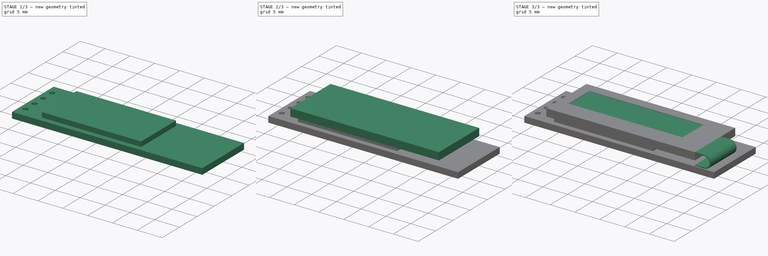
[diagram: build sequence overview — one tinted view per stage of 3, left to right]
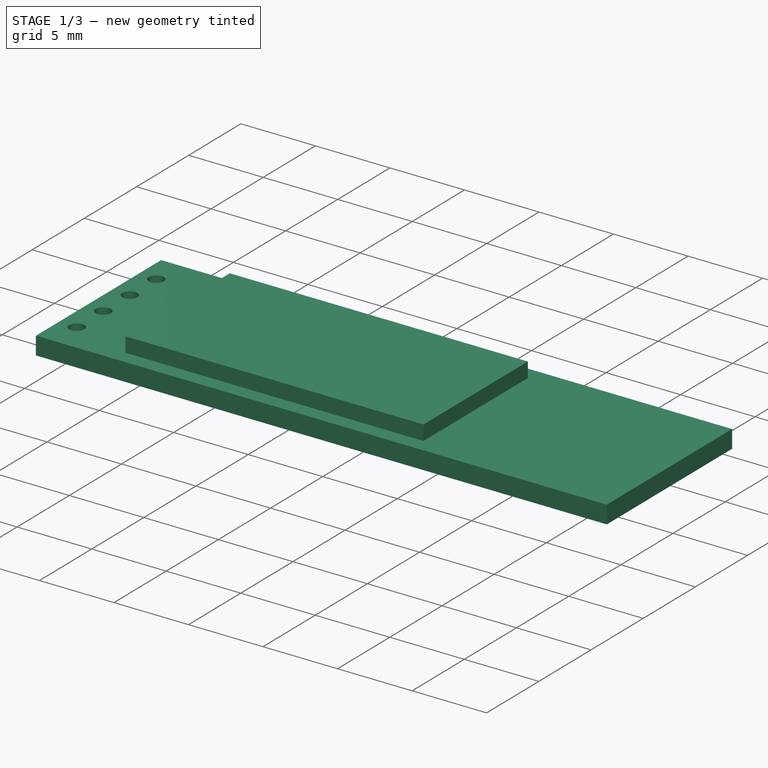
[diagram: stage 1 of 3 — iso view after this stage's code; geometry added in this stage tinted green]
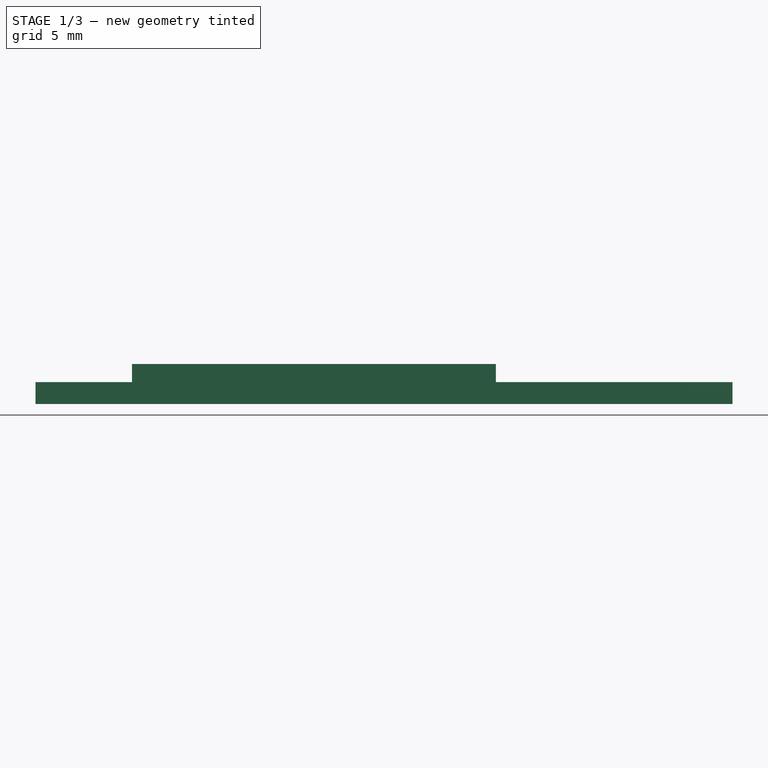
[diagram: stage 1 of 3 — front view after this stage's code; geometry added in this stage tinted green]
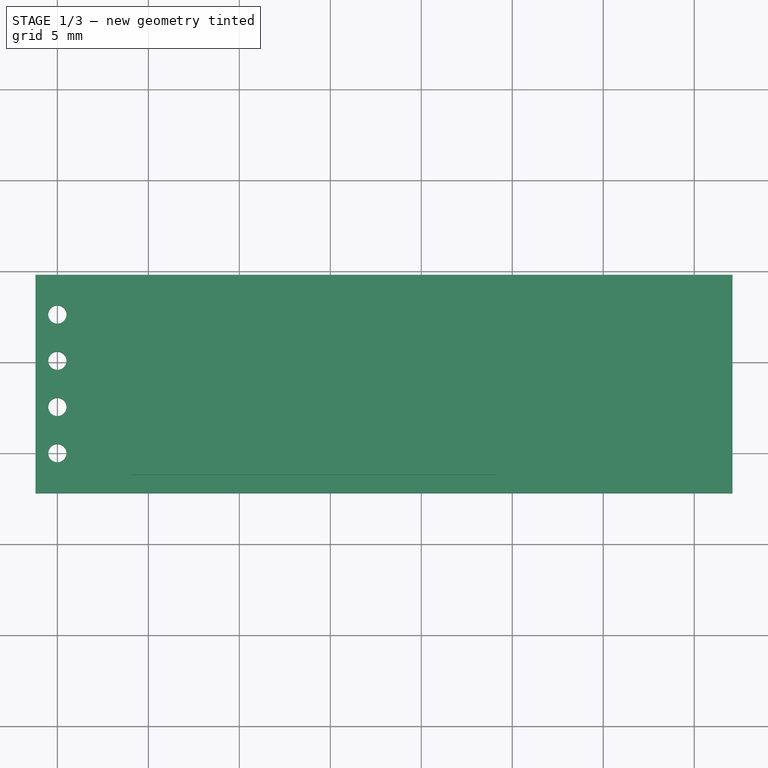
[diagram: stage 1 of 3 — top view after this stage's code; geometry added in this stage tinted green]
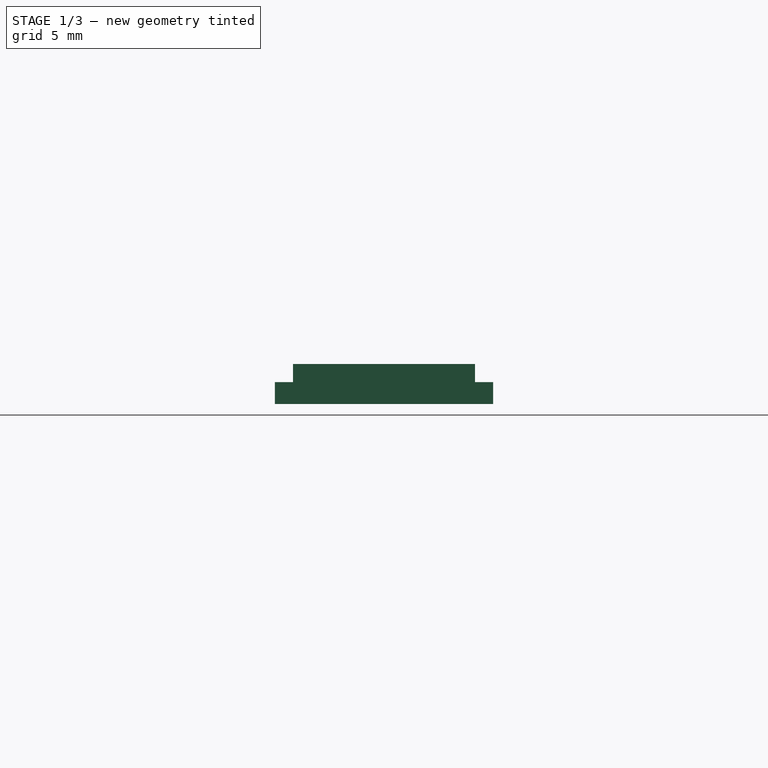
[diagram: stage 1 of 3 — right view after this stage's code; geometry added in this stage tinted green]
FCSTD DOCUMENT  (FreeCAD 0.18R16131 (Git))
Label: oled_128x32
License: All rights reserved
LicenseURL: http://en.wikipedia.org/wiki/All_rights_reserved
objects: Sketcher::SketchObject×5, PartDesign::Pad×4, PartDesign::Pocket×1, PartDesign::Body×1
note: 16 computed .brp shape members not serialized (recipe doc carries the construction recipe); baked Part::Feature solids carry a one-line shape summary decoded from their .brp

FEATURE [Sketcher::SketchObject] Sketch  label="Platinengrundriss"
  MapMode = 5
  Support = -> [XY_Plane]
  sketch-geometry (8):
    g0: LineSegment StartX=-1.2 StartY=9.8 StartZ=0 EndX=37.1 EndY=9.8 EndZ=0
    g1: LineSegment StartX=37.1 StartY=9.8 StartZ=0 EndX=37.1 EndY=-2.2 EndZ=0
    g2: LineSegment StartX=37.1 StartY=-2.2 StartZ=0 EndX=-1.2 EndY=-2.2 EndZ=0
    g3: LineSegment StartX=-1.2 StartY=-2.2 StartZ=0 EndX=-1.2 EndY=9.8 EndZ=0
    g4: Circle CenterX=0 CenterY=0 CenterZ=0 NormalX=0 NormalY=0 NormalZ=1 AngleXU=0 Radius=0.5
    g5: Circle CenterX=0 CenterY=2.54 CenterZ=0 NormalX=0 NormalY=0 NormalZ=1 AngleXU=0 Radius=0.5
    g6: Circle CenterX=0 CenterY=5.08 CenterZ=0 NormalX=0 NormalY=0 NormalZ=1 AngleXU=0 Radius=0.5
    g7: Circle CenterX=0 CenterY=7.62 CenterZ=0 NormalX=0 NormalY=0 NormalZ=1 AngleXU=0 Radius=0.5
  constraints (23):
    c: Coincident(g0,g1)
    c: Coincident(g1,g2)
    c: Coincident(g2,g3)
    c: Coincident(g3,g0)
    c: Horizontal(g0)
    c: Horizontal(g2)
    c: Vertical(g1)
    c: Vertical(g3)
    c: DistanceX(g2,g-1) = 1.2
    c: DistanceY(g2,g-1) = 2.2
    c: DistanceX(g0,g0) = 38.3
    c: DistanceY(g1,g1) = 12
    c: Equal(g7,g6)
    c: Equal(g6,g5)
    c: Equal(g5,g4)
    c: Radius(g4) = 0.5
    c: Vertical(g4,g5)
    c: Vertical(g5,g6)
    c: Vertical(g6,g7)
    c: Coincident(g4,g-1)
    c: DistanceY(g4,g5) = 2.54
    c: DistanceY(g5,g6) = 2.54
    c: DistanceY(g6,g7) = 2.54
FEATURE [PartDesign::Pad] Pad
  Length = 1.2
  Length2 = 100
  Profile = -> Sketch
  Type = 0
FEATURE [Sketcher::SketchObject] Sketch001
  ExternalGeometry = -> [Pad]
  MapMode = 5
  Placement = pos=(0,0,1.2) rot=(0,0,1;0rad)
  Support = -> [Pad]
  sketch-geometry (4):
    g0: LineSegment StartX=4.1 StartY=8.8 StartZ=0 EndX=24.1 EndY=8.8 EndZ=0
    g1: LineSegment StartX=24.1 StartY=8.8 StartZ=0 EndX=24.1 EndY=-1.2 EndZ=0
    g2: LineSegment StartX=24.1 StartY=-1.2 StartZ=0 EndX=4.1 EndY=-1.2 EndZ=0
    g3: LineSegment StartX=4.1 StartY=-1.2 StartZ=0 EndX=4.1 EndY=8.8 EndZ=0
  constraints (12):
    c: Coincident(g0,g1)
    c: Coincident(g1,g2)
    c: Coincident(g2,g3)
    c: Coincident(g3,g0)
    c: Horizontal(g0)
    c: Horizontal(g2)
    c: Vertical(g1)
    c: Vertical(g3)
    c: Distance(g1) = 10
    c: Distance(g2) = 20
    c: DistanceY(g-4,g2) = 1
    c: DistanceX(g-4,g2) = 5.3
FEATURE [PartDesign::Pad] Pad001
  BaseFeature = -> Pad
  Length = 1
  Length2 = 100
  Profile = -> Sketch001
  Type = 0
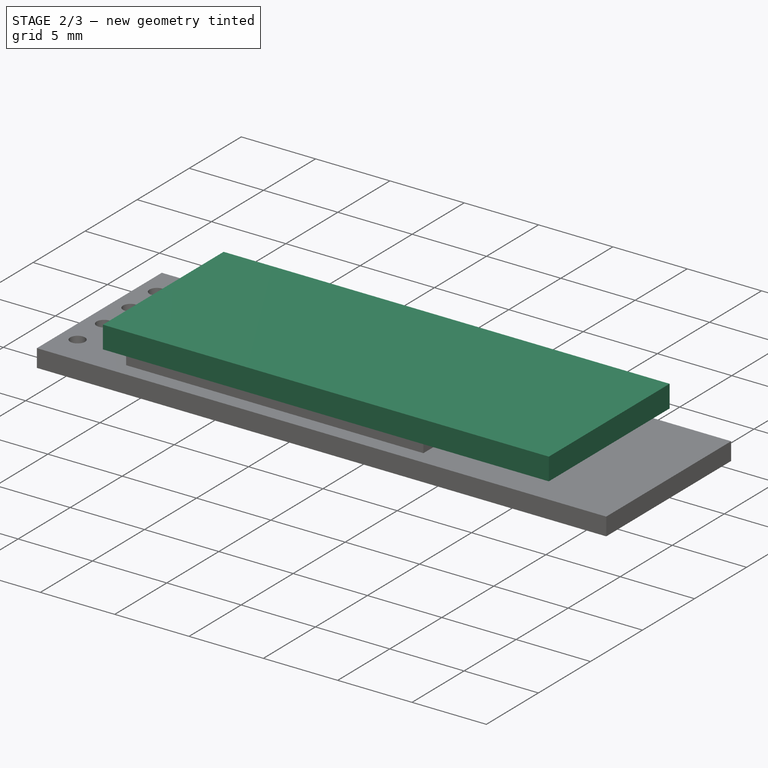
[diagram: stage 2 of 3 — iso view after this stage's code; geometry added in this stage tinted green]
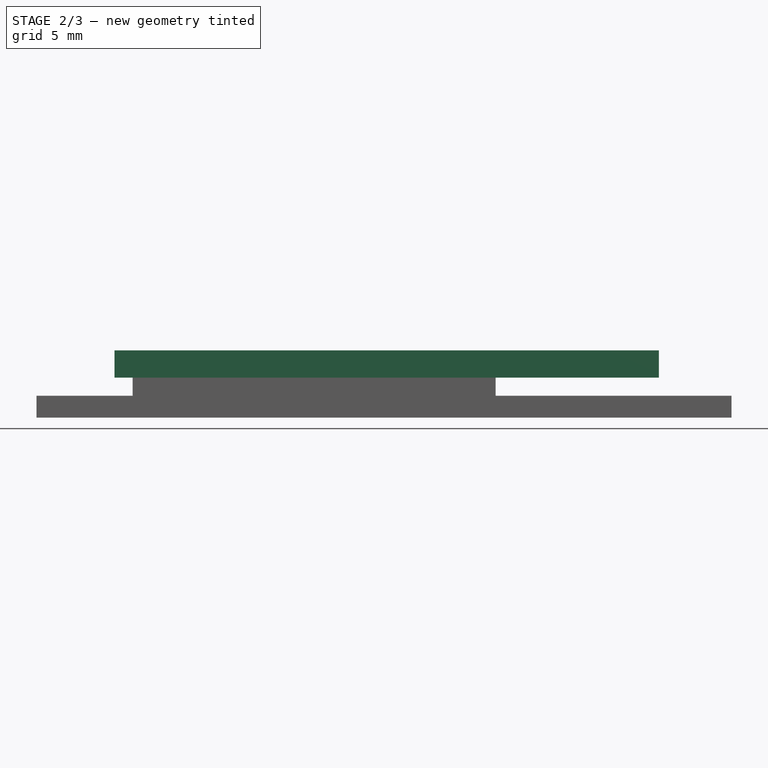
[diagram: stage 2 of 3 — front view after this stage's code; geometry added in this stage tinted green]
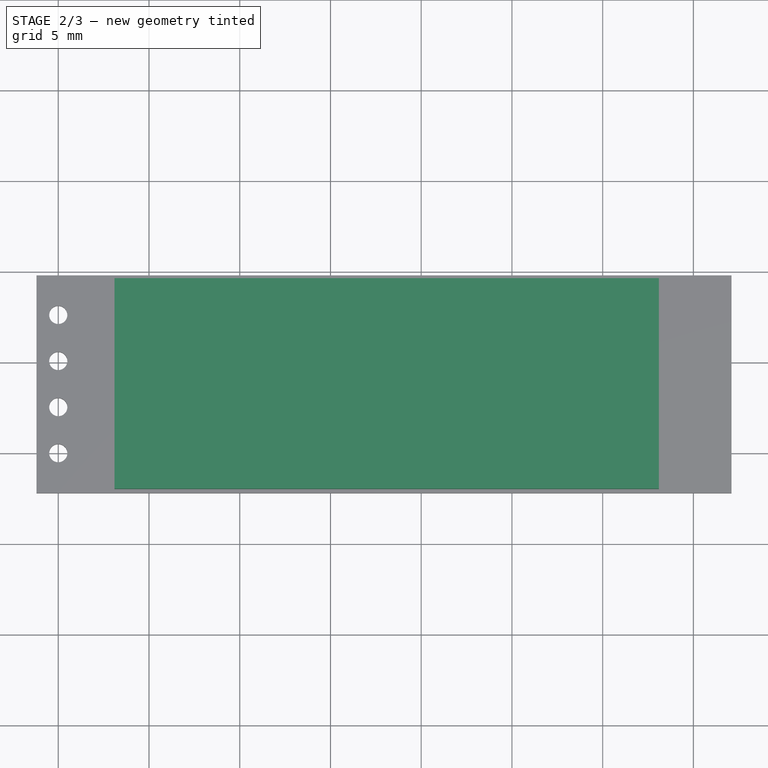
[diagram: stage 2 of 3 — top view after this stage's code; geometry added in this stage tinted green]
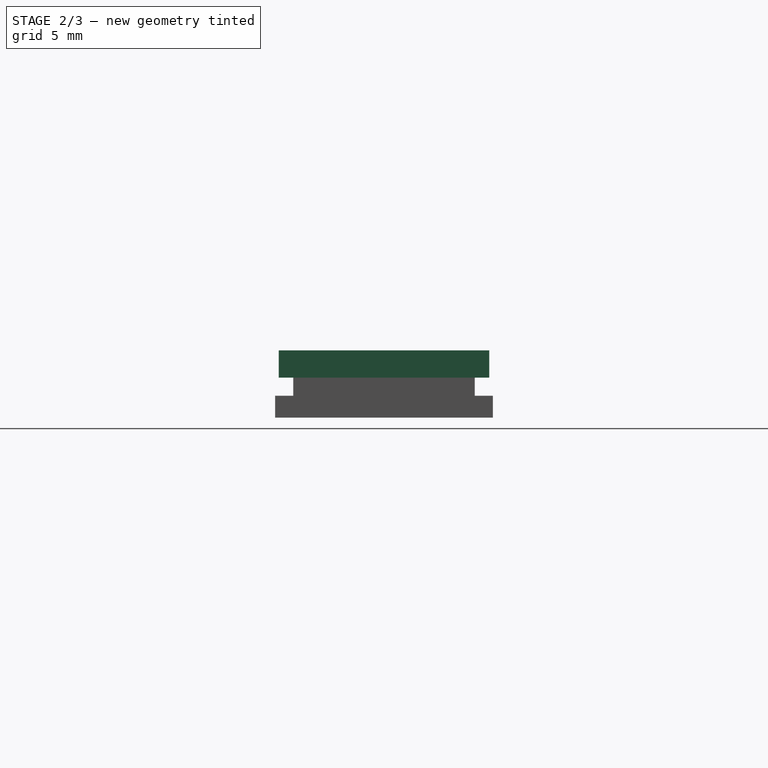
[diagram: stage 2 of 3 — right view after this stage's code; geometry added in this stage tinted green]
FEATURE [Sketcher::SketchObject] Sketch002
  ExternalGeometry = -> [Pad001]
  MapMode = 5
  Placement = pos=(0,0,2.2) rot=(0,0,1;0rad)
  Support = -> [Pad001]
  sketch-geometry (4):
    g0: LineSegment StartX=3.1 StartY=9.6 StartZ=0 EndX=33.1 EndY=9.6 EndZ=0
    g1: LineSegment StartX=33.1 StartY=9.6 StartZ=0 EndX=33.1 EndY=-2 EndZ=0
    g2: LineSegment StartX=33.1 StartY=-2 StartZ=0 EndX=3.1 EndY=-2 EndZ=0
    g3: LineSegment StartX=3.1 StartY=-2 StartZ=0 EndX=3.1 EndY=9.6 EndZ=0
  constraints (12):
    c: Coincident(g0,g1)
    c: Coincident(g1,g2)
    c: Coincident(g2,g3)
    c: Coincident(g3,g0)
    c: Horizontal(g0)
    c: Horizontal(g2)
    c: Vertical(g1)
    c: Vertical(g3)
    c: Distance(g0) = 30
    c: Distance(g1) = 11.6
    c: DistanceX(g-4,g2) = 4.3
    c: DistanceY(g-4,g2) = 0.2
FEATURE [PartDesign::Pad] Pad002
  BaseFeature = -> Pad001
  Length = 1.5
  Length2 = 100
  Profile = -> Sketch002
  Type = 0
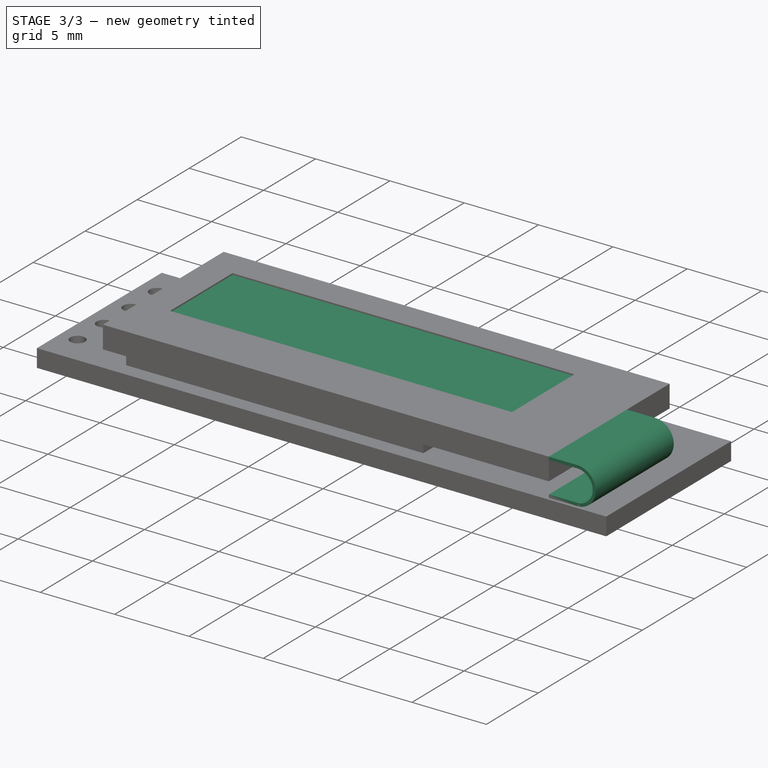
[diagram: stage 3 of 3 — iso view after this stage's code; geometry added in this stage tinted green]
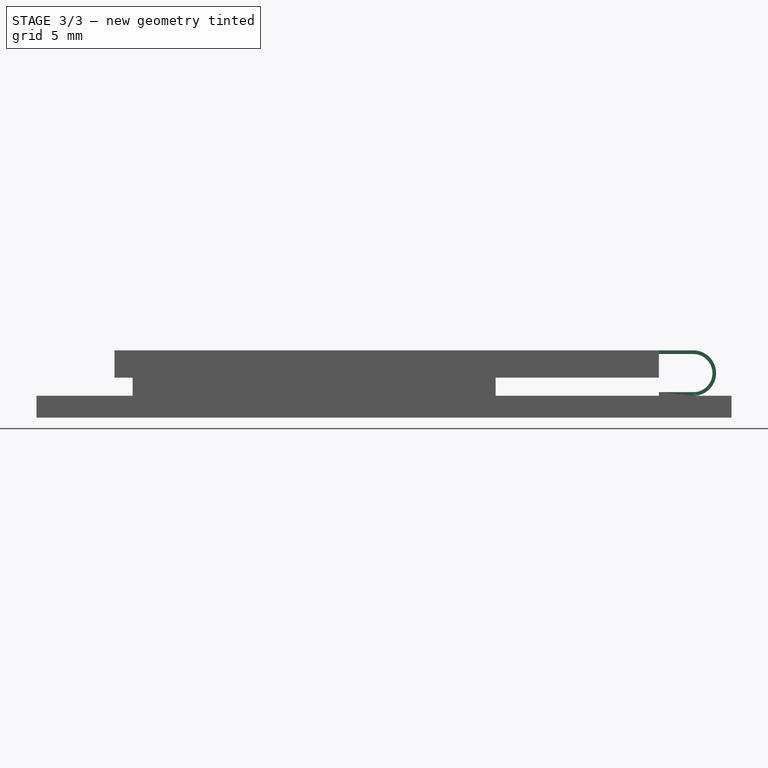
[diagram: stage 3 of 3 — front view after this stage's code; geometry added in this stage tinted green]
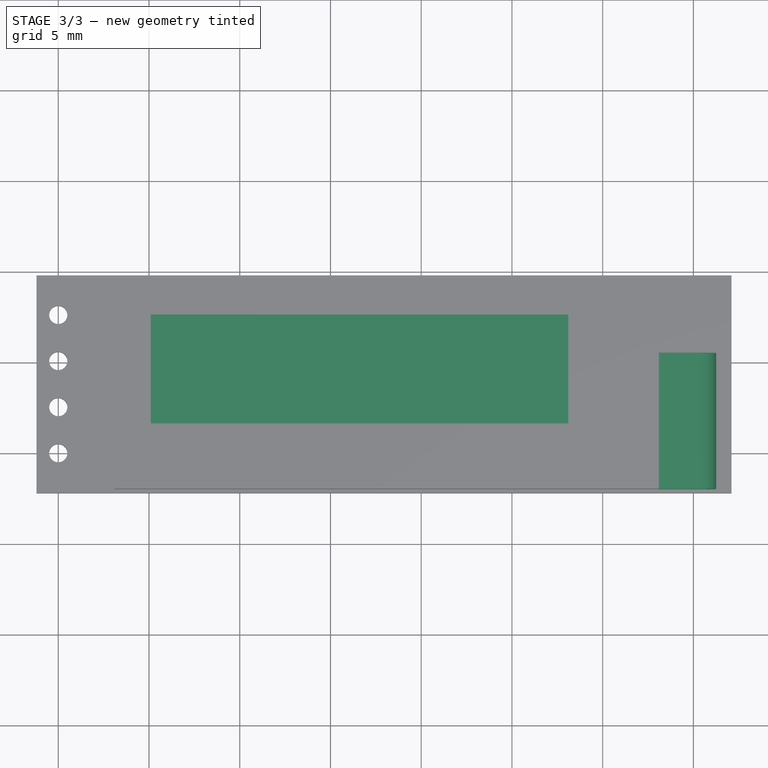
[diagram: stage 3 of 3 — top view after this stage's code; geometry added in this stage tinted green]
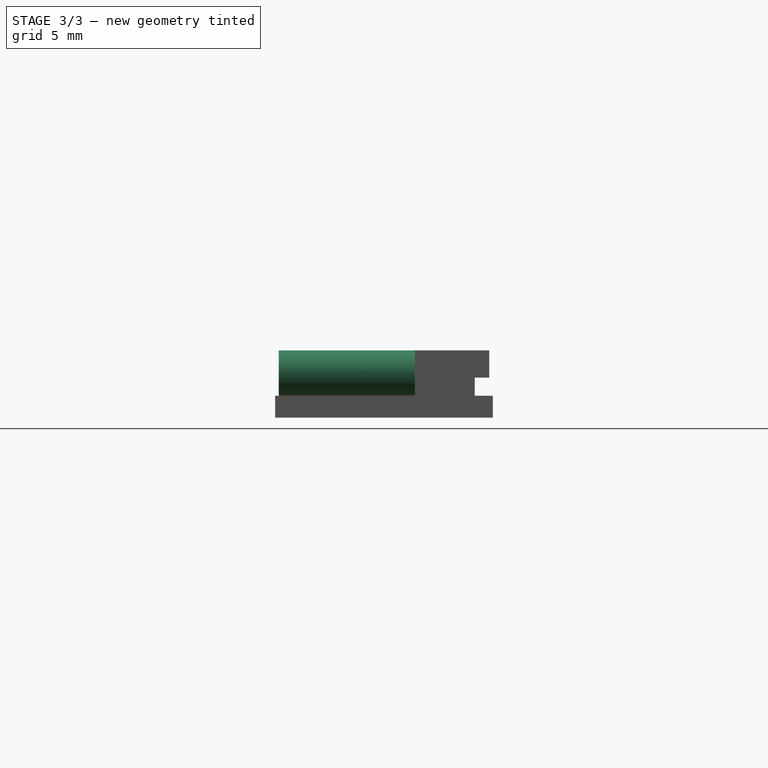
[diagram: stage 3 of 3 — right view after this stage's code; geometry added in this stage tinted green]
FEATURE [Sketcher::SketchObject] Sketch003
  ExternalGeometry = -> [Pad002]
  MapMode = 5
  Placement = pos=(0,-2,0) rot=(1,0,0;1.5708rad)
  Support = -> [Pad002]
  sketch-geometry (8):
    g0: ArcOfCircle CenterX=35 CenterY=2.45 CenterZ=0 NormalX=0 NormalY=0 NormalZ=1 AngleXU=0 Radius=1.25 StartAngle=4.71239 EndAngle=7.85398
    g1: LineSegment StartX=33.1 StartY=1.2 StartZ=0 EndX=35 EndY=1.2 EndZ=0
    g2: LineSegment StartX=33.1 StartY=3.7 StartZ=0 EndX=35 EndY=3.7 EndZ=0
    g3: ArcOfCircle CenterX=35 CenterY=2.45 CenterZ=0 NormalX=0 NormalY=0 NormalZ=1 AngleXU=0 Radius=1.05 StartAngle=4.71239 EndAngle=7.85398
    g4: LineSegment StartX=33.1 StartY=1.4 StartZ=0 EndX=35 EndY=1.4 EndZ=0
    g5: LineSegment StartX=33.1 StartY=3.5 StartZ=0 EndX=35 EndY=3.5 EndZ=0
    g6: LineSegment StartX=33.1 StartY=1.4 StartZ=0 EndX=33.1 EndY=1.2 EndZ=0
    g7: LineSegment StartX=33.1 StartY=3.7 StartZ=0 EndX=33.1 EndY=3.5 EndZ=0
  constraints (20):
    c: Tangent(g1,g0) = -1.5708
    c: Tangent(g2,g0) = 1.5708
    c: Horizontal(g1)
    c: Coincident(g2,g-4)
    c: Horizontal(g2)
    c: Tangent(g4,g3) = -1.5708
    c: Tangent(g5,g3) = 1.5708
    c: Horizontal(g4)
    c: Coincident(g0,g3)
    c: Coincident(g1,g6)
    c: Coincident(g4,g6)
    c: Coincident(g5,g7)
    c: Coincident(g2,g7)
    c: Vertical(g7)
    c: PointOnObject(g1,g-3)
    c: Vertical(g6)
    c: Horizontal(g5)
    c: Distance(g7) = 0.2
    c: DistanceX(g0) = 35
    c: Vertical(g4,g-4)
FEATURE [PartDesign::Pad] Pad003
  BaseFeature = -> Pad002
  Length = 7.5
  Length2 = 100
  Profile = -> Sketch003
  Reversed = true
  Type = 0
FEATURE [Sketcher::SketchObject] Sketch004
  ExternalGeometry = -> [Pad003]
  MapMode = 5
  Placement = pos=(0,0,3.7) rot=(0,0,1;0rad)
  Support = -> [Pad003]
  sketch-geometry (4):
    g0: LineSegment StartX=5.1 StartY=7.6 StartZ=0 EndX=28.1 EndY=7.6 EndZ=0
    g1: LineSegment StartX=28.1 StartY=7.6 StartZ=0 EndX=28.1 EndY=1.6 EndZ=0
    g2: LineSegment StartX=28.1 StartY=1.6 StartZ=0 EndX=5.1 EndY=1.6 EndZ=0
    g3: LineSegment StartX=5.1 StartY=1.6 StartZ=0 EndX=5.1 EndY=7.6 EndZ=0
  constraints (12):
    c: Coincident(g0,g1)
    c: Coincident(g1,g2)
    c: Coincident(g2,g3)
    c: Coincident(g3,g0)
    c: Horizontal(g0)
    c: Horizontal(g2)
    c: Vertical(g1)
    c: Vertical(g3)
    c: Distance(g2,g-3) = 2
    c: Distance(g0,g-4) = 2
    c: Distance(g0,g-3) = 25
    c: Distance(g2,g-4) = 8
FEATURE [PartDesign::Pocket] Pocket
  BaseFeature = -> Pad003
  Length = 0.1
  Length2 = 100
  Profile = -> Sketch004
  Type = 0
FEATURE [PartDesign::Body] Body
  Group = -> [Sketch,Pad,Sketch001,Pad001,Sketch002,Pad002,Sketch003,Pad003,Sketch004,Pocket]
  Origin = -> Origin
  Tip = -> Pocket
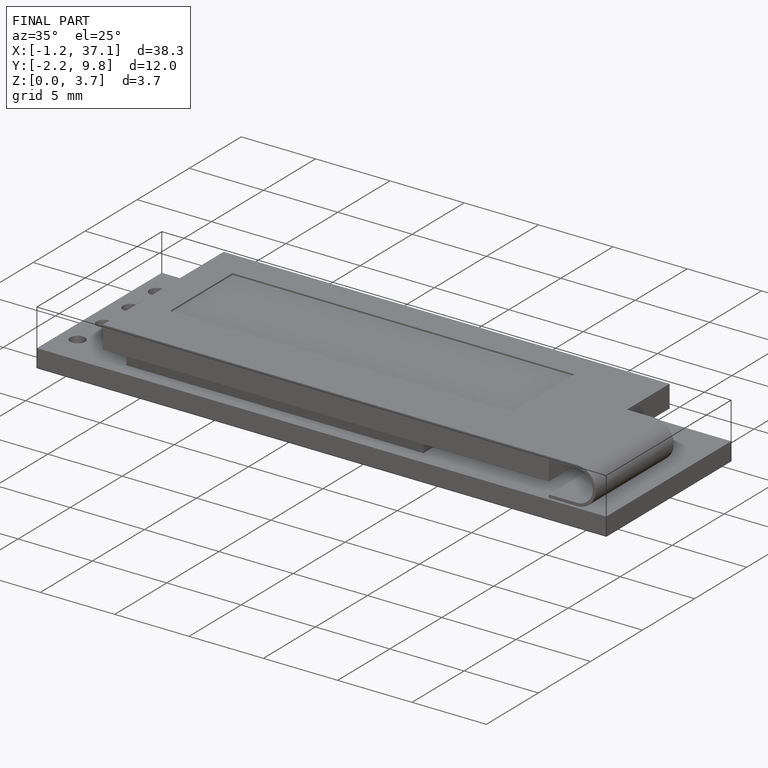
[diagram: finished part — iso view with bounding-box wireframe]
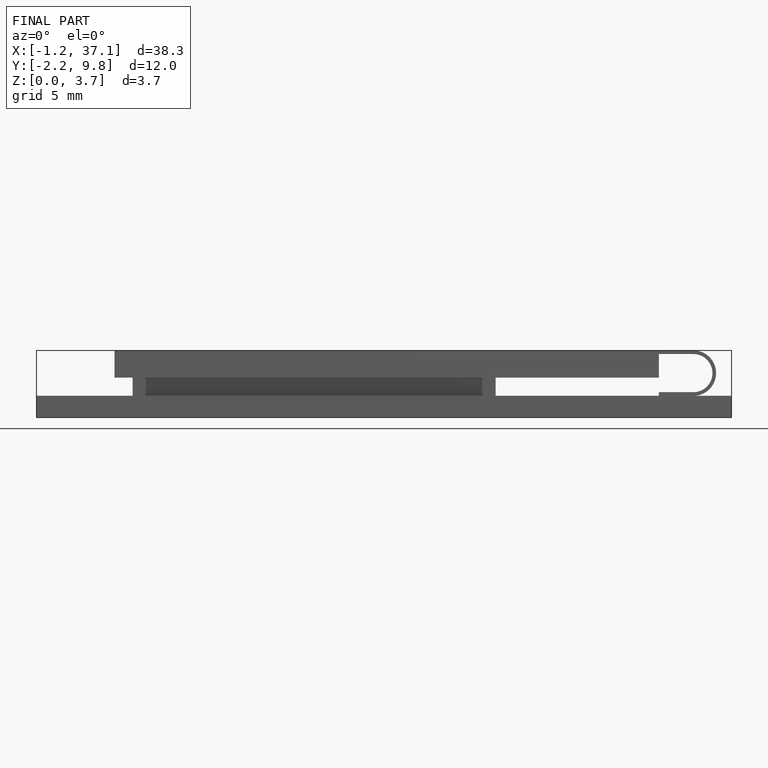
[diagram: finished part — front view with bounding-box wireframe]
